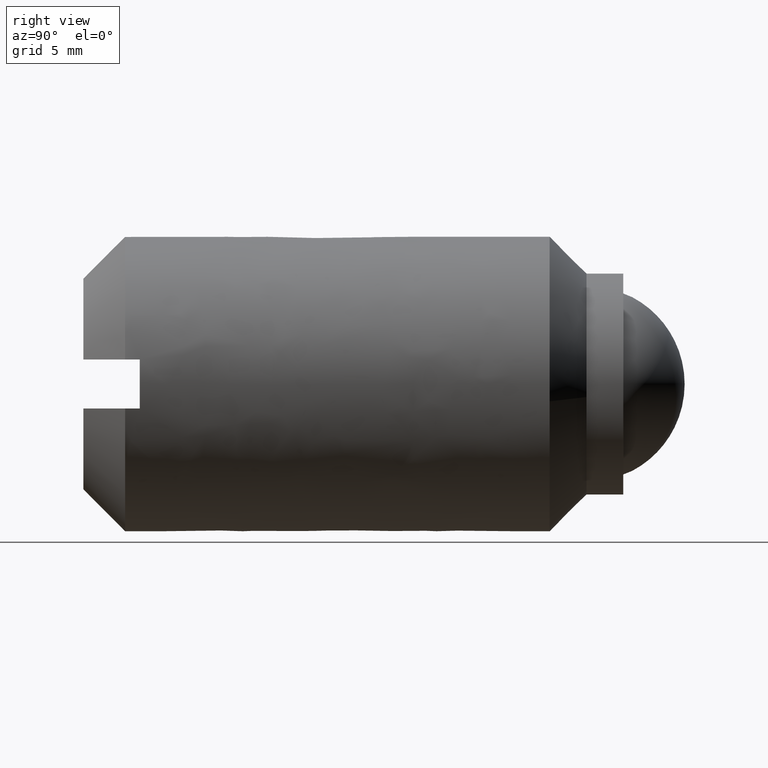
[diagram: clean part render]
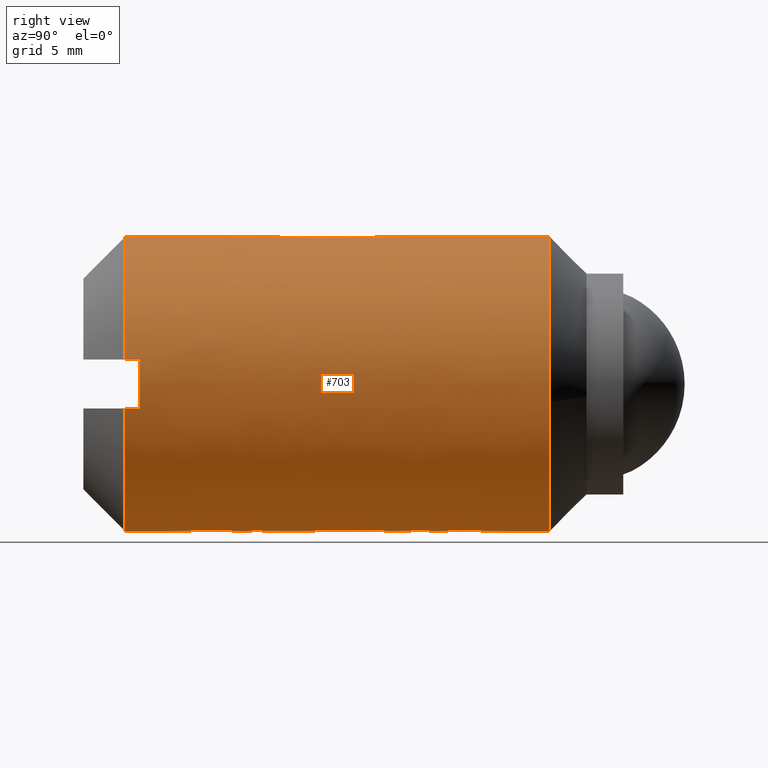
[diagram: same view with one face highlighted and labeled with its STEP entity id]
A machine part, right view. The second image highlights one B-rep face of the part: STEP entity #703.
In plain terms, the highlighted face is a freeform B-spline surface patch.
Its self-contained STEP definition (entity closure, byte-faithful):
#471=CARTESIAN_POINT('',(-3.618751996580211,-5.500000000000002,4.785878601390381));
#472=VERTEX_POINT('',#471);
#486=CARTESIAN_POINT('',(0.0,-5.500000000000000,5.999999999999998));
#487=VERTEX_POINT('',#486);
#488=CARTESIAN_POINT('',(0.0,-5.500000000000000,5.999999999999998));
#489=CARTESIAN_POINT('',(-2.013049583600106,-5.500000000000000,6.0));
#490=CARTESIAN_POINT('',(-3.618751996580212,-5.500000000000002,4.785878601390381));
#498=(BOUNDED_CURVE()B_SPLINE_CURVE(2,(#488,#489,#490),.UNSPECIFIED.,.F.,.U.)B_SPLINE_CURVE_WITH_KNOTS((3,3),(0.500000000000000,0.604146613491098),.UNSPECIFIED.)CURVE()GEOMETRIC_REPRESENTATION_ITEM()RATIONAL_B_SPLINE_CURVE((1.0,0.877984652584287,0.857629186986864))REPRESENTATION_ITEM(''));
#499=EDGE_CURVE('',#487,#472,#498,.T.);
#501=CARTESIAN_POINT('',(5.958057158182147,-5.500000000002313,-0.708205407958896));
#502=VERTEX_POINT('',#501);
#503=CARTESIAN_POINT('',(5.958057158182148,-5.500000000002313,-0.708205407958896));
#504=CARTESIAN_POINT('',(6.0,-5.500000000000001,-0.355344717929724));
#505=CARTESIAN_POINT('',(6.0,-5.500000000000000,-1.591988E-015));
#506=CARTESIAN_POINT('',(6.0,-5.500000000000001,5.999999999999998));
#507=CARTESIAN_POINT('',(0.0,-5.500000000000000,5.999999999999998));
#515=(BOUNDED_CURVE()B_SPLINE_CURVE(2,(#503,#504,#505,#506,#507),.UNSPECIFIED.,.F.,.U.)B_SPLINE_CURVE_WITH_KNOTS((3,2,3),(0.229562473514619,0.250000000000000,0.500000000000000),.UNSPECIFIED.)CURVE()GEOMETRIC_REPRESENTATION_ITEM()RATIONAL_B_SPLINE_CURVE((0.956026754185876,0.976055948332446,1.0,0.707106781186548,1.0))REPRESENTATION_ITEM(''));
#516=EDGE_CURVE('',#502,#487,#515,.T.);
#546=CARTESIAN_POINT('',(0.0,-5.500000000000000,-6.000000000000002));
#547=VERTEX_POINT('',#546);
#548=CARTESIAN_POINT('',(0.0,-5.500000000000000,-6.000000000000002));
#549=CARTESIAN_POINT('',(5.329047155675653,-5.500000000000000,-6.000000000000002));
#550=CARTESIAN_POINT('',(5.958057158182148,-5.500000000002313,-0.708205407958896));
#558=(BOUNDED_CURVE()B_SPLINE_CURVE(2,(#548,#549,#550),.UNSPECIFIED.,.F.,.U.)B_SPLINE_CURVE_WITH_KNOTS((3,3),(0.0,0.229562473514619),.UNSPECIFIED.)CURVE()GEOMETRIC_REPRESENTATION_ITEM()RATIONAL_B_SPLINE_CURVE((1.0,0.731050832854101,0.956026754185876))REPRESENTATION_ITEM(''));
#559=EDGE_CURVE('',#547,#502,#558,.T.);
#561=CARTESIAN_POINT('',(-5.500045112384811,-5.499999999999999,-2.397812286587266));
#562=VERTEX_POINT('',#561);
#563=CARTESIAN_POINT('',(-5.500045112384811,-5.499999999999998,-2.397812286587265));
#564=CARTESIAN_POINT('',(-3.929627091930062,-5.500000000000001,-6.000000000000002));
#565=CARTESIAN_POINT('',(0.0,-5.500000000000000,-6.000000000000002));
#573=(BOUNDED_CURVE()B_SPLINE_CURVE(2,(#563,#564,#565),.UNSPECIFIED.,.F.,.U.)B_SPLINE_CURVE_WITH_KNOTS((3,3),(0.817857007856095,1.0),.UNSPECIFIED.)CURVE()GEOMETRIC_REPRESENTATION_ITEM()RATIONAL_B_SPLINE_CURVE((0.884157887859825,0.786606210986633,1.0))REPRESENTATION_ITEM(''));
#574=EDGE_CURVE('',#562,#547,#573,.T.);
#596=CARTESIAN_POINT('',(-5.500043192005914,-5.067499999999998,-2.397816691506962));
#597=CARTESIAN_POINT('',(-5.215423072728959,-5.067499999999998,-3.050670162283870));
#598=CARTESIAN_POINT('',(-4.785878244320990,-5.067499999999999,-3.618752468812288));
#599=CARTESIAN_POINT('',(-1.167125775508703,-5.067499999999999,-8.404630713133278));
#600=CARTESIAN_POINT('',(3.618752468812287,-5.067499999999999,-4.785878244320991));
#601=CARTESIAN_POINT('',(8.404630713133276,-5.067499999999999,-1.167125775508705));
#602=CARTESIAN_POINT('',(4.785878244320990,-5.067499999999999,3.618752468812285));
#603=CARTESIAN_POINT('',(1.167125775508703,-5.067499999999999,8.404630713133274));
#604=CARTESIAN_POINT('',(-3.618752468812287,-5.067499999999999,4.785878244320988));
#605=CARTESIAN_POINT('',(-5.500043192005914,-23.243312500000002,-2.397816691506962));
#606=CARTESIAN_POINT('',(-5.215423072728959,-23.243312500000002,-3.050670162283870));
#607=CARTESIAN_POINT('',(-4.785878244320990,-23.243312500000009,-3.618752468812288));
#608=CARTESIAN_POINT('',(-1.167125775508703,-23.243312500000009,-8.404630713133278));
#609=CARTESIAN_POINT('',(3.618752468812287,-23.243312500000009,-4.785878244320991));
#610=CARTESIAN_POINT('',(8.404630713133276,-23.243312500000009,-1.167125775508705));
#611=CARTESIAN_POINT('',(4.785878244320990,-23.243312500000009,3.618752468812285));
#612=CARTESIAN_POINT('',(1.167125775508703,-23.243312500000009,8.404630713133274));
#613=CARTESIAN_POINT('',(-3.618752468812287,-23.243312500000009,4.785878244320988));
#621=(BOUNDED_SURFACE()B_SPLINE_SURFACE(2,1,((#596,#605),(#597,#606),(#598,#607),(#599,#608),(#600,#609),(#601,#610),(#602,#611),(#603,#612),(#604,#613)),.UNSPECIFIED.,.F.,.F.,.U.)B_SPLINE_SURFACE_WITH_KNOTS((3,2,2,2,3),(2,2),(0.0,1.590580079512685,11.531705576466960,21.472831073421240,31.413956570375522),(0.0,18.175812500000010),.UNSPECIFIED.)GEOMETRIC_REPRESENTATION_ITEM()RATIONAL_B_SPLINE_SURFACE(((0.921270302782944,0.921270302782944),(0.953137084989848,0.953137084989848),(1.0,1.0),(0.707106781186548,0.707106781186548),(1.0,1.0),(0.707106781186548,0.707106781186548),(1.0,1.0),(0.707106781186548,0.707106781186548),(1.0,1.0)))REPRESENTATION_ITEM('')SURFACE());
#622=ORIENTED_EDGE('',*,*,#574,.T.);
#623=ORIENTED_EDGE('',*,*,#559,.T.);
#624=ORIENTED_EDGE('',*,*,#516,.T.);
#625=ORIENTED_EDGE('',*,*,#499,.T.);
#626=CARTESIAN_POINT('',(-3.618751917186941,-22.800000000000001,4.785878661422093));
#627=VERTEX_POINT('',#626);
#628=CARTESIAN_POINT('',(-3.618751996580211,-5.500000000000002,4.785878601390381));
#629=CARTESIAN_POINT('',(-3.618751917186941,-22.800000000000001,4.785878661422093));
#630=QUASI_UNIFORM_CURVE('',1,(#628,#629),.UNSPECIFIED.,.F.,.U.);
#631=EDGE_CURVE('',#472,#627,#630,.T.);
#632=ORIENTED_EDGE('',*,*,#631,.T.);
#633=CARTESIAN_POINT('',(5.916080000000000,-22.800000000000001,1.0));
#634=VERTEX_POINT('',#633);
#635=CARTESIAN_POINT('',(5.916080000000000,-22.800000000000001,1.0));
#636=CARTESIAN_POINT('',(5.070925561939013,-22.800000000000004,5.999999984723810));
#637=CARTESIAN_POINT('',(0.000000018075030,-22.800000000000001,5.999999999999998));
#638=CARTESIAN_POINT('',(-2.013049464841354,-22.799999999999997,6.000000006064321));
#639=CARTESIAN_POINT('',(-3.618751917186941,-22.800000000000004,4.785878661422093));
#647=(BOUNDED_CURVE()B_SPLINE_CURVE(2,(#635,#636,#637,#638,#639),.UNSPECIFIED.,.F.,.U.)B_SPLINE_CURVE_WITH_KNOTS((3,2,3),(0.0,0.500000000000000,0.731462636504327),.UNSPECIFIED.)CURVE()GEOMETRIC_REPRESENTATION_ITEM()RATIONAL_B_SPLINE_CURVE((1.0,0.763762614853692,1.0,0.890639743986294,0.882530740715471))REPRESENTATION_ITEM(''));
#648=EDGE_CURVE('',#634,#627,#647,.T.);
#649=ORIENTED_EDGE('',*,*,#648,.F.);
#650=CARTESIAN_POINT('',(5.916080000000000,-22.199999999999999,1.0));
#651=VERTEX_POINT('',#650);
#652=CARTESIAN_POINT('',(5.916080000000000,-22.199999999999999,1.0));
#653=CARTESIAN_POINT('',(5.916080000000000,-22.800000000000001,1.0));
#654=QUASI_UNIFORM_CURVE('',1,(#652,#653),.UNSPECIFIED.,.F.,.U.);
#655=EDGE_CURVE('',#651,#634,#654,.T.);
#656=ORIENTED_EDGE('',*,*,#655,.F.);
#657=CARTESIAN_POINT('',(5.916079783099621,-22.199999999999999,-1.0));
#658=VERTEX_POINT('',#657);
#659=CARTESIAN_POINT('',(5.916079783099616,-22.199999999999999,-0.999999999999998));
#660=CARTESIAN_POINT('',(6.085110630946742,-22.199999999999996,-0.000000018331423));
#661=CARTESIAN_POINT('',(5.916080000000000,-22.199999999999999,1.0));
#669=(BOUNDED_CURVE()B_SPLINE_CURVE(2,(#659,#660,#661),.UNSPECIFIED.,.F.,.U.)CURVE()GEOMETRIC_REPRESENTATION_ITEM()QUASI_UNIFORM_CURVE()RATIONAL_B_SPLINE_CURVE((1.0,0.986013297685354,1.0))REPRESENTATION_ITEM(''));
#670=EDGE_CURVE('',#658,#651,#669,.T.);
#671=ORIENTED_EDGE('',*,*,#670,.F.);
#672=CARTESIAN_POINT('',(5.916079783099621,-22.800000000000001,-1.0));
#673=VERTEX_POINT('',#672);
#674=CARTESIAN_POINT('',(5.916079783099621,-22.199999999999999,-1.0));
#675=CARTESIAN_POINT('',(5.916079783099621,-22.800000000000001,-1.0));
#676=QUASI_UNIFORM_CURVE('',1,(#674,#675),.UNSPECIFIED.,.F.,.U.);
#677=EDGE_CURVE('',#658,#673,#676,.T.);
#678=ORIENTED_EDGE('',*,*,#677,.T.);
#679=CARTESIAN_POINT('',(-5.500043753276088,-22.800000000000001,-2.397815404080704));
#680=VERTEX_POINT('',#679);
#681=CARTESIAN_POINT('',(-5.500043753276088,-22.799999999999994,-2.397815404080704));
#682=CARTESIAN_POINT('',(-3.929624662102188,-22.800000000000008,-6.000000000000002));
#683=CARTESIAN_POINT('',(0.0,-22.800000000000001,-6.000000000000002));
#684=CARTESIAN_POINT('',(5.070925528371100,-22.800000000000004,-6.000000000000003));
#685=CARTESIAN_POINT('',(5.916079783099616,-22.800000000000001,-1.0));
#693=(BOUNDED_CURVE()B_SPLINE_CURVE(2,(#681,#682,#683,#684,#685),.UNSPECIFIED.,.F.,.U.)B_SPLINE_CURVE_WITH_KNOTS((3,2,3),(0.090775577009492,0.500000000000000,1.0),.UNSPECIFIED.)CURVE()GEOMETRIC_REPRESENTATION_ITEM()RATIONAL_B_SPLINE_CURVE((0.929794817076440,0.806651785545194,1.0,0.763762615825973,1.0))REPRESENTATION_ITEM(''));
#694=EDGE_CURVE('',#680,#673,#693,.T.);
#695=ORIENTED_EDGE('',*,*,#694,.F.);
#696=CARTESIAN_POINT('',(-5.500045112384811,-5.499999999999999,-2.397812286587266));
#697=CARTESIAN_POINT('',(-5.500043753276088,-22.800000000000001,-2.397815404080704));
#698=QUASI_UNIFORM_CURVE('',1,(#696,#697),.UNSPECIFIED.,.F.,.U.);
#699=EDGE_CURVE('',#562,#680,#698,.T.);
#700=ORIENTED_EDGE('',*,*,#699,.F.);
#701=EDGE_LOOP('',(#622,#623,#624,#625,#632,#649,#656,#671,#678,#695,#700));
#702=FACE_OUTER_BOUND('',#701,.T.);
#703=ADVANCED_FACE('',(#702),#621,.T.);